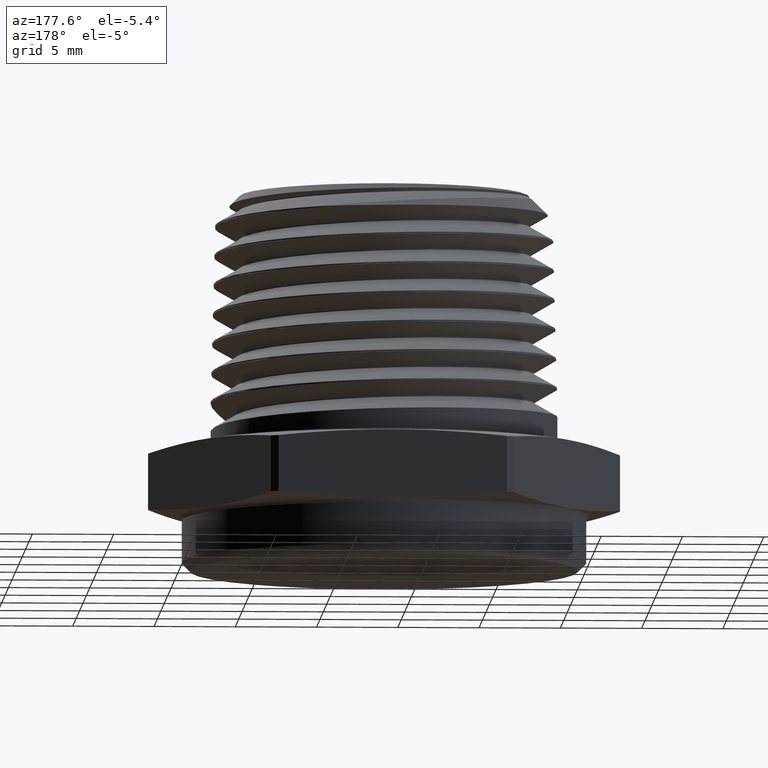
[diagram: clean part render]
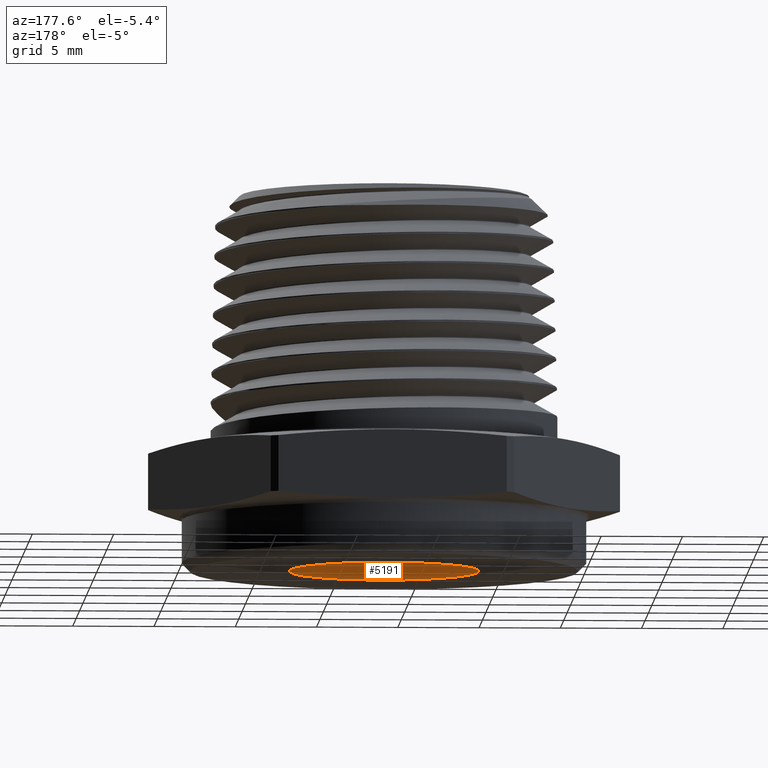
[diagram: same view with one face highlighted and labeled with its STEP entity id]
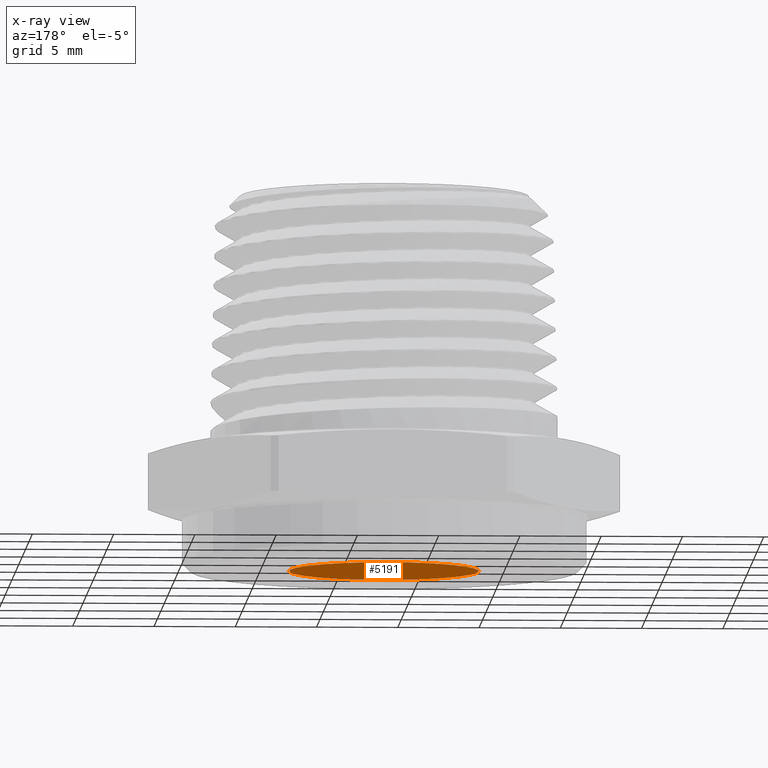
[diagram: x-ray of the same camera — body ghosted, the highlighted face saturated]
A machine part, auxiliary view. The second image highlights one B-rep face of the part: STEP entity #5191.
The next image is the same camera in x-ray: the body ghosted, the highlighted face saturated — about 0% of this face is hidden behind the body in this view.
In plain terms, the highlighted planar face has unit normal (0, 0, -1).
Its self-contained STEP definition (entity closure, byte-faithful):
#230 = VERTEX_POINT ( 'NONE', #4884 ) ;
#232 = VERTEX_POINT ( 'NONE', #4886 ) ;
#301 = EDGE_LOOP ( 'NONE', ( #3791, #312 ) ) ;
#312 = ORIENTED_EDGE ( 'NONE', *, *, #2916, .T. ) ;
#2406 = CARTESIAN_POINT ( 'NONE',  ( 0.0000000000000000000, 0.1499999999999999900, 0.0000000000000000000 ) ) ;
#2407 = DIRECTION ( 'NONE',  ( 0.0000000000000000000, 1.000000000000000000, 0.0000000000000000000 ) ) ;
#2408 = DIRECTION ( 'NONE',  ( 0.0000000000000000000, 0.0000000000000000000, 1.000000000000000000 ) ) ;
#2448 = CARTESIAN_POINT ( 'NONE',  ( 0.0000000000000000000, 0.1499999999999999900, 0.0000000000000000000 ) ) ;
#2450 = PLANE ( 'NONE',  #2499 ) ;
#2452 = DIRECTION ( 'NONE',  ( 0.0000000000000000000, 1.000000000000000000, 0.0000000000000000000 ) ) ;
#2453 = DIRECTION ( 'NONE',  ( 0.0000000000000000000, -0.0000000000000000000, 1.000000000000000000 ) ) ;
#2499 = AXIS2_PLACEMENT_3D ( 'NONE', #2448, #2452, #2453 ) ;
#2622 = CIRCLE ( 'NONE', #3053, 0.2300000000000000100 ) ;
#2780 = CIRCLE ( 'NONE', #3099, 0.2300000000000000100 ) ;
#2784 = FACE_OUTER_BOUND ( 'NONE', #301, .T. ) ;
#2916 = EDGE_CURVE ( 'NONE', #232, #230, #2622, .T. ) ;
#3053 = AXIS2_PLACEMENT_3D ( 'NONE', #4904, #4905, #4906 ) ;
#3099 = AXIS2_PLACEMENT_3D ( 'NONE', #2406, #2407, #2408 ) ;
#3207 = EDGE_CURVE ( 'NONE', #230, #232, #2780, .T. ) ;
#3791 = ORIENTED_EDGE ( 'NONE', *, *, #3207, .T. ) ;
#4884 = CARTESIAN_POINT ( 'NONE',  ( 0.0000000000000000000, 0.1499999999999999900, -0.2300000000000000100 ) ) ;
#4886 = CARTESIAN_POINT ( 'NONE',  ( 2.816687638038911700E-017, 0.1499999999999999900, 0.2300000000000000100 ) ) ;
#4904 = CARTESIAN_POINT ( 'NONE',  ( 0.0000000000000000000, 0.1499999999999999900, 0.0000000000000000000 ) ) ;
#4905 = DIRECTION ( 'NONE',  ( 0.0000000000000000000, 1.000000000000000000, 0.0000000000000000000 ) ) ;
#4906 = DIRECTION ( 'NONE',  ( 0.0000000000000000000, 0.0000000000000000000, 1.000000000000000000 ) ) ;
#5191 = ADVANCED_FACE ( 'NONE', ( #2784 ), #2450, .T. ) ;